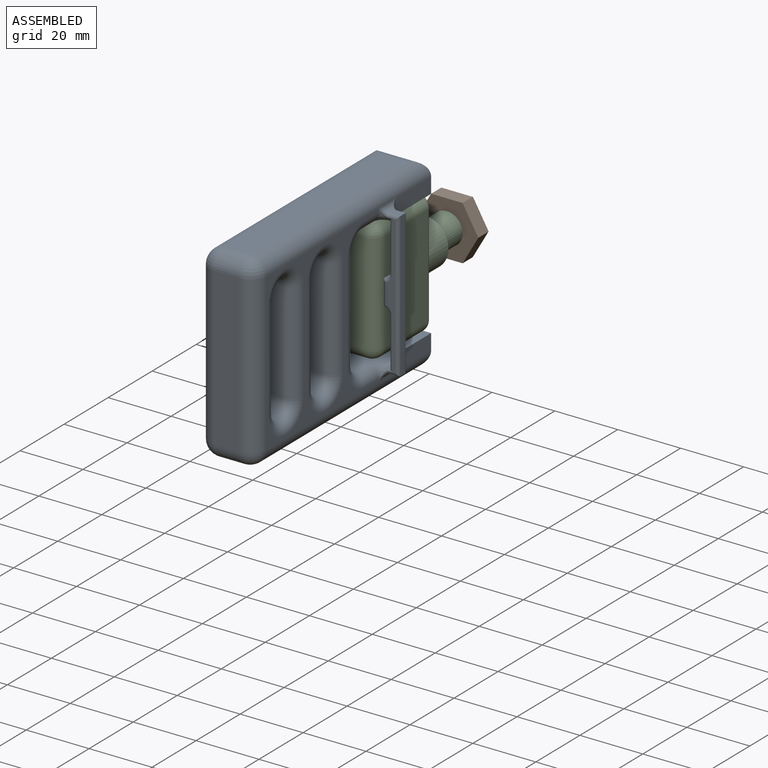
[diagram: assembled view]
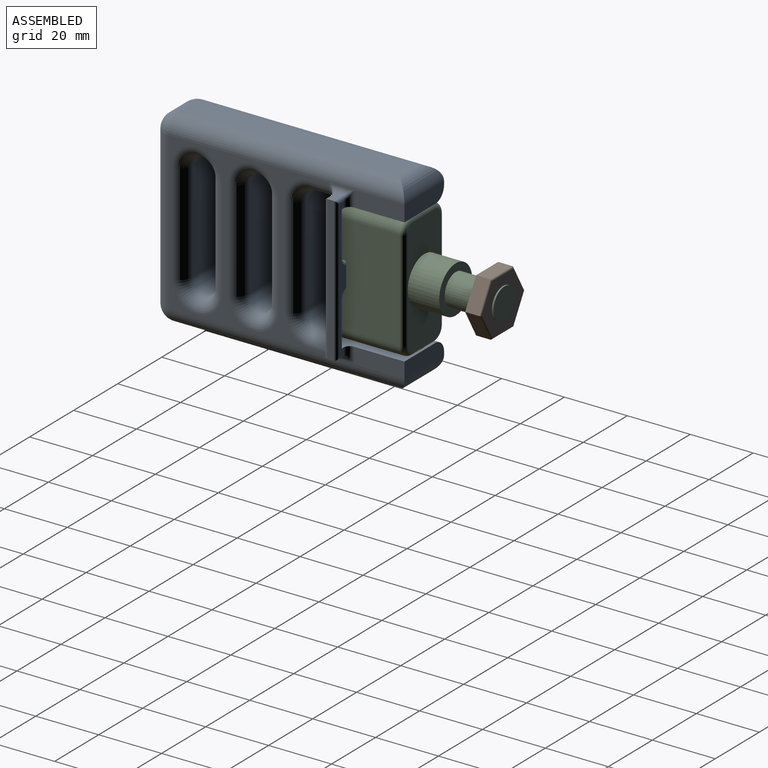
[diagram: assembled view, second angle]
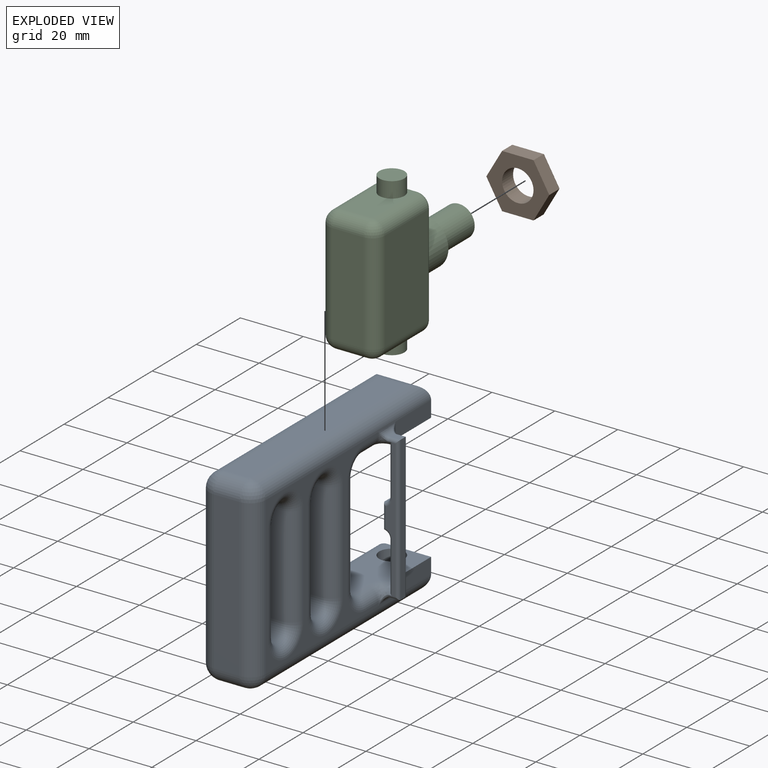
[diagram: exploded view]
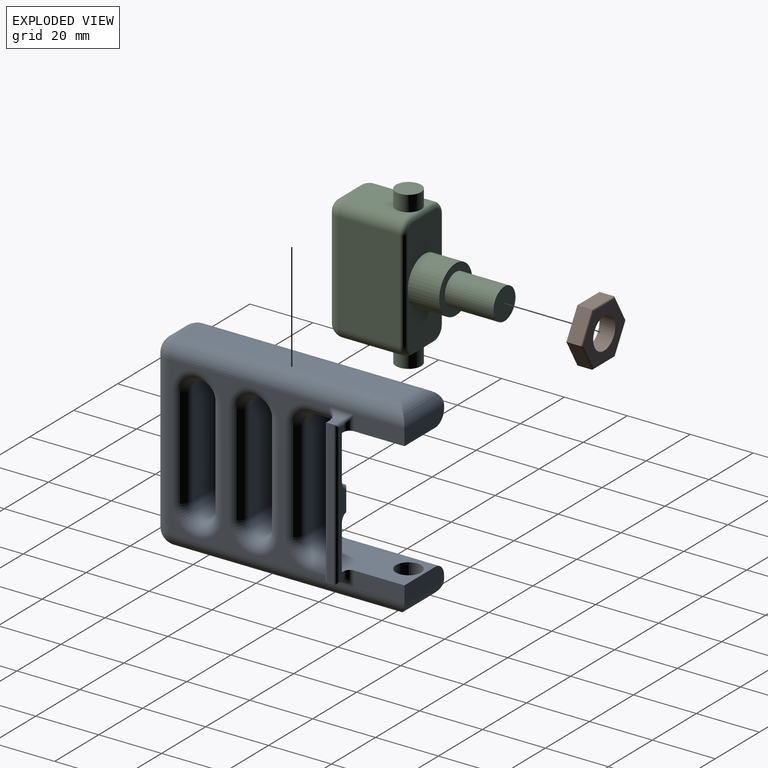
[diagram: exploded view, second angle]
ASSEMBLY  parts=3 mates=4
PART A: 110 faces, bbox 23x80x60 mm
  f0: cylinder r=4mm len=0.46mm, axis (-1,0,0), area 0mm2, adj f11,f41,f73
  f1: cylinder r=4mm len=1.15mm, axis (-1,0,0), area 0.4mm2, adj f43,f49,f88
  f2: plane 16x5mm, normal (1,0,0), area 80mm2, adj f18,f19,f34,f66
  f3: plane 16x5mm, normal (1,0,0), area 80mm2, adj f7,f11,f30,f58
  f4: plane 14.87x2.02mm, normal (-1,0,0), area 28.7mm2, adj f37,f41,f45,f73
  f5: plane 51x50mm, normal (1,0,0), area 479.3mm2, adj f32,f33,f58,f63,f66,f77,f81,f83
  f6: cylinder r=4mm len=8mm, axis (0,0,-1), area 125.7mm2, adj f11,f12
  f7: plane 18x5mm, normal (0,1,0), area 86.6mm2, adj f3,f8,f11,f59,f74
  f8: plane 75x50mm, normal (-1,0,0), area 527.3mm2, adj f7,f19,f61,f67,f71,f74,f76,f79
  f9: plane 50x8mm, normal (0,-1,0), area 400mm2, adj f62,f63,f67,f68
  f10: plane 70x8mm, normal (0,0,1), area 560mm2, adj f58,f59,f61,f62
  f11: plane 30x17mm, normal (0,0,-1), area 332.2mm2, adj f0,f3,f6,f7,f25,f30,f41,f73
  f12: plane 8x8mm, normal (0,0,-1), area 50.3mm2, adj f6
  f13: plane 32x10mm, normal (0,1,0), area 320mm2, adj f91,f93,f97,f98
  f14: plane 32x10mm, normal (0,1,0), area 320mm2, adj f78,f79,f83,f84
  f15: plane 32x10mm, normal (0,-1,0), area 320mm2, adj f101,f102,f106,f107
  f16: plane 32x10mm, normal (0,1,0), area 320mm2, adj f101,f103,f107,f108
  f17: plane 32x10mm, normal (0,-1,0), area 320mm2, adj f91,f92,f96,f97
  f18: plane 30x17mm, normal (0,0,1), area 332.2mm2, adj f2,f19,f20,f25,f34,f38,f80,f84
  f19: plane 18x5mm, normal (0,1,0), area 86.6mm2, adj f2,f8,f18,f69,f80
  f20: cylinder r=4mm len=8mm, axis (0,0,1), area 125.7mm2, adj f18,f22
  f21: plane 70x8mm, normal (0,0,-1), area 560mm2, adj f66,f68,f69,f71
  f22: plane 8x8mm, normal (0,0,1), area 50.3mm2, adj f20
  f23: plane 44x3mm, normal (0,-1,0), area 59.7mm2, adj f43,f44,f45,f46,f47,f49,f50,f52
  f24: plane 3x2mm, normal (0,0,-1), area 6mm2, adj f26,f35,f49,f54
  f25: plane 44x3mm, normal (0,1,0), area 63.7mm2, adj f11,f18,f30,f34,f38,f39,f40,f41
  f26: plane 46x2mm, normal (1,0,0), area 92mm2, adj f24,f28,f50,f55
  f27: plane 14.87x2.02mm, normal (-1,0,0), area 28.7mm2, adj f36,f38,f43,f88
  f28: plane 3x2mm, normal (0,0,1), area 6mm2, adj f26,f31,f52,f57
  f29: plane 8x2mm, normal (-1,0,0), area 16mm2, adj f36,f37,f40,f46
  f30: cylinder r=2mm len=5mm, axis (0,0,1), area 9.7mm2, adj f3,f11,f25,f56
  f31: cylinder r=2mm len=8mm, axis (0,-1,0), area 13.1mm2, adj f28,f51,f56,f58
  f32: cylinder r=2mm len=1mm, axis (0,0,-1), area 0.3mm2, adj f5,f51,f75
  f33: cylinder r=2mm len=1mm, axis (0,0,-1), area 0.3mm2, adj f5,f48,f87
  f34: cylinder r=2mm len=5mm, axis (0,0,1), area 9.7mm2, adj f2,f18,f25,f53
  f35: cylinder r=2mm len=8mm, axis (0,1,0), area 13.1mm2, adj f24,f48,f53,f66
  f36: cylinder r=2mm len=2mm, axis (0,-1,0), area 6.3mm2, adj f27,f29,f39,f44
  f37: cylinder r=2mm len=2mm, axis (0,1,0), area 6.3mm2, adj f4,f29,f42,f47
  f38: cylinder r=1mm len=14.03mm, axis (0,0,-1), area 22mm2, adj f18,f25,f27,f39,f89
  f39: torus R=3mm, axis (0,1,0), area 5.2mm2, adj f25,f36,f38,f40
  f40: cylinder r=1mm len=8mm, axis (0,0,-1), area 11.6mm2, adj f25,f29,f39,f42
  f41: cylinder r=1mm len=14.03mm, axis (0,0,-1), area 22mm2, adj f0,f4,f11,f25,f42
  f42: torus R=3mm, axis (0,1,0), area 5.2mm2, adj f25,f37,f40,f41
  f43: cylinder r=1mm len=16mm, axis (0,0,1), area 24.4mm2, adj f1,f23,f27,f44
  f44: torus R=3mm, axis (0,1,0), area 5.2mm2, adj f23,f36,f43,f46
  f45: cylinder r=1mm len=16mm, axis (0,0,1), area 24.4mm2, adj f4,f23,f47,f72
  f46: cylinder r=1mm len=8mm, axis (0,0,1), area 11.6mm2, adj f23,f29,f44,f47
  f47: torus R=3mm, axis (0,1,0), area 5.2mm2, adj f23,f37,f45,f46
  f48: bspline ~3x3mm, area 3.6mm2, adj f33,f35,f49,f88
  f49: cylinder r=1mm len=3mm, axis (-1,0,0), area 4.1mm2, adj f1,f23,f24,f48,f50
  f50: cylinder r=1mm len=46mm, axis (0,0,1), area 71.1mm2, adj f23,f26,f49,f52
  f51: bspline ~3x3mm, area 3.6mm2, adj f31,f32,f52,f73
  f52: cylinder r=1mm len=3mm, axis (1,0,0), area 4.1mm2, adj f23,f28,f50,f51,f72
  f53: bspline ~3x3mm, area 3.6mm2, adj f34,f35,f54
  f54: cylinder r=1mm len=3mm, axis (1,0,0), area 4.1mm2, adj f24,f25,f53,f55
  f55: cylinder r=1mm len=46mm, axis (0,0,-1), area 71.1mm2, adj f25,f26,f54,f57
  f56: bspline ~3x3mm, area 3.6mm2, adj f30,f31,f57
  f57: cylinder r=1mm len=3mm, axis (-1,0,0), area 4.1mm2, adj f25,f28,f55,f56
  f58: cylinder r=5mm len=75mm, axis (0,-1,0), area 574.8mm2, adj f3,f5,f10,f31,f59,f60
  f59: cylinder r=5mm len=18mm, axis (1,0,0), area 112.8mm2, adj f7,f10,f58,f61
  f60: sphere r=5mm, area 39.3mm2, adj f58,f62,f63
  f61: cylinder r=5mm len=75mm, axis (0,1,0), area 574.8mm2, adj f8,f10,f59,f64
  f62: cylinder r=5mm len=8mm, axis (-1,0,0), area 62.8mm2, adj f9,f10,f60,f64
  f63: cylinder r=5mm len=50mm, axis (0,0,1), area 392.7mm2, adj f5,f9,f60,f65
  f64: sphere r=5mm, area 39.3mm2, adj f61,f62,f67
  f65: sphere r=5mm, area 39.3mm2, adj f63,f66,f68
  f66: cylinder r=5mm len=75mm, axis (0,-1,0), area 574.8mm2, adj f2,f5,f21,f35,f65,f69
  f67: cylinder r=5mm len=50mm, axis (0,0,-1), area 392.7mm2, adj f8,f9,f64,f70
  f68: cylinder r=5mm len=8mm, axis (-1,0,0), area 62.8mm2, adj f9,f21,f65,f70
  f69: cylinder r=5mm len=18mm, axis (-1,0,0), area 112.8mm2, adj f19,f21,f66,f71
  f70: sphere r=5mm, area 39.3mm2, adj f67,f68,f71
  f71: cylinder r=5mm len=75mm, axis (0,1,0), area 574.8mm2, adj f8,f21,f69,f70
  f72: cylinder r=4mm len=1.15mm, axis (-1,0,0), area 0.4mm2, adj f45,f52,f73
  f73: bspline ~6.39x4.97mm, area 22.1mm2, adj f0,f4,f11,f51,f72,f75
  f74: cylinder r=4mm len=30mm, axis (0,-1,0), area 188.5mm2, adj f7,f8,f11,f76
  f75: torus R=6mm, axis (0,0,1), area 7.4mm2, adj f11,f32,f73,f77
  f76: torus R=8mm, axis (1,0,0), area 53.8mm2, adj f8,f74,f78,f79
  f77: cylinder r=4mm len=6mm, axis (0,1,0), area 37.7mm2, adj f5,f11,f75,f81
  f78: cylinder r=4mm len=10mm, axis (-1,0,0), area 62.8mm2, adj f11,f14,f76,f81
  f79: cylinder r=4mm len=32mm, axis (0,0,-1), area 201.1mm2, adj f8,f14,f76,f82
  f80: cylinder r=4mm len=30mm, axis (0,-1,0), area 188.5mm2, adj f8,f18,f19,f82
  f81: torus R=8mm, axis (1,0,0), area 53.8mm2, adj f5,f77,f78,f83
  f82: torus R=8mm, axis (1,0,0), area 53.8mm2, adj f8,f79,f80,f84
  f83: cylinder r=4mm len=32mm, axis (0,0,1), area 201.1mm2, adj f5,f14,f81,f85
  f84: cylinder r=4mm len=10mm, axis (1,0,0), area 62.8mm2, adj f14,f18,f82,f85
  f85: torus R=8mm, axis (1,0,0), area 53.8mm2, adj f5,f83,f84,f86
  f86: cylinder r=4mm len=6mm, axis (0,1,0), area 37.7mm2, adj f5,f18,f85,f87
  f87: torus R=6mm, axis (0,0,-1), area 7.4mm2, adj f18,f33,f86,f88
  f88: bspline ~6.39x4.97mm, area 22.1mm2, adj f1,f18,f27,f48,f87,f89
  f89: cylinder r=4mm len=0.46mm, axis (-1,0,0), area 0mm2, adj f18,f38,f88
  f90: torus R=8mm, axis (1,0,0), area 107.6mm2, adj f5,f91,f92,f93
  f91: cylinder r=4mm len=10mm, axis (1,0,0), area 125.7mm2, adj f13,f17,f90,f94
  f92: cylinder r=4mm len=32mm, axis (0,0,-1), area 201.1mm2, adj f5,f17,f90,f95
  f93: cylinder r=4mm len=32mm, axis (0,0,1), area 201.1mm2, adj f5,f13,f90,f95
  f94: torus R=8mm, axis (1,0,0), area 107.6mm2, adj f8,f91,f96,f98
  f95: torus R=8mm, axis (1,0,0), area 107.6mm2, adj f5,f92,f93,f97
  f96: cylinder r=4mm len=32mm, axis (0,0,1), area 201.1mm2, adj f8,f17,f94,f99
  f97: cylinder r=4mm len=10mm, axis (-1,0,0), area 125.7mm2, adj f13,f17,f95,f99
  f98: cylinder r=4mm len=32mm, axis (0,0,-1), area 201.1mm2, adj f8,f13,f94,f99
  f99: torus R=8mm, axis (1,0,0), area 107.6mm2, adj f8,f96,f97,f98
  f100: torus R=8mm, axis (1,0,0), area 107.6mm2, adj f5,f101,f102,f103
  f101: cylinder r=4mm len=10mm, axis (1,0,0), area 125.7mm2, adj f15,f16,f100,f104
  f102: cylinder r=4mm len=32mm, axis (0,0,-1), area 201.1mm2, adj f5,f15,f100,f105
  f103: cylinder r=4mm len=32mm, axis (0,0,1), area 201.1mm2, adj f5,f16,f100,f105
  f104: torus R=8mm, axis (1,0,0), area 107.6mm2, adj f8,f101,f106,f108
  f105: torus R=8mm, axis (1,0,0), area 107.6mm2, adj f5,f102,f103,f107
  f106: cylinder r=4mm len=32mm, axis (0,0,1), area 201.1mm2, adj f8,f15,f104,f109
  f107: cylinder r=4mm len=10mm, axis (-1,0,0), area 125.7mm2, adj f15,f16,f105,f109
  f108: cylinder r=4mm len=32mm, axis (0,0,-1), area 201.1mm2, adj f8,f16,f104,f109
  f109: torus R=8mm, axis (1,0,0), area 107.6mm2, adj f8,f106,f107,f108
PART B: 15 faces, bbox 17.3x5x20 mm
  f0: plane 8.66x5mm, normal (0.5,0,-0.87), area 45mm2, adj f1,f5,f8,f12
  f1: plane 8.66x5mm, normal (-0.5,0,-0.87), area 45mm2, adj f0,f2,f8,f10
  f2: plane 10x4.5mm, normal (-1,0,0), area 45mm2, adj f1,f3,f8,f9
  f3: plane 8.66x5mm, normal (-0.5,0,0.87), area 45mm2, adj f2,f4,f8,f11
  f4: plane 8.66x5mm, normal (0.5,0,0.87), area 45mm2, adj f3,f5,f8,f13
  f5: plane 10x4.5mm, normal (1,0,0), area 45mm2, adj f0,f4,f8,f14
  f6: cylinder r=5mm len=10mm, axis (0,-1,0), area 157.1mm2, adj f7,f8
  f7: plane 18.85x16.32mm, normal (0,1,0), area 152.1mm2, adj f6,f9,f10,f11,f12,f13,f14
  f8: plane 20x17.32mm, normal (0,-1,0), area 181.3mm2, adj f0,f1,f2,f3,f4,f5,f6
  f9: cylinder r=0.5mm len=10mm, axis (0,0,-1), area 7.7mm2, adj f2,f7,f10,f11
  f10: cylinder r=0.5mm len=8.91mm, axis (0.87,0,-0.5), area 7.7mm2, adj f1,f7,f9,f12
  f11: cylinder r=0.5mm len=8.91mm, axis (-0.87,0,-0.5), area 7.7mm2, adj f3,f7,f9,f13
  f12: cylinder r=0.5mm len=8.91mm, axis (0.87,0,0.5), area 7.7mm2, adj f0,f7,f10,f14
  f13: cylinder r=0.5mm len=8.91mm, axis (-0.87,0,0.5), area 7.7mm2, adj f4,f7,f11,f14
  f14: cylinder r=0.5mm len=10mm, axis (0,0,1), area 7.7mm2, adj f5,f7,f12,f13
PART C: 39 faces, bbox 18.7x50.5x50 mm
  f0: plane 18.59x15mm, normal (0,1,0), area 186.6mm2, adj f4,f17,f19,f20,f21,f22,f23,f25
  f1: plane 18.59x15mm, normal (0,1,0), area 186.6mm2, adj f4,f15,f16,f17,f18,f20,f27,f38
  f2: cylinder r=5mm len=15.5mm, axis (0,-1,0), area 486.9mm2, adj f3,f5
  f3: plane 10x10mm, normal (0,1,0), area 78.5mm2, adj f2
  f4: cylinder r=7.5mm len=15mm, axis (0,1,0), area 471.2mm2, adj f0,f1,f5
  f5: plane 15x15mm, normal (0,1,0), area 98.2mm2, adj f2,f4
  f6: plane 19.5x10mm, normal (0,0,1), area 146mm2, adj f13,f15,f18,f31,f35,f37
  f7: plane 32x19.5mm, normal (-1,0,0), area 624mm2, adj f20,f24,f30,f31
  f8: plane 19.5x10mm, normal (0,0,-1), area 146mm2, adj f12,f19,f22,f24,f28,f29
  f9: plane 32x19.5mm, normal (1,0,0), area 624mm2, adj f17,f28,f34,f37
  f10: plane 32x10mm, normal (0,-1,0), area 320mm2, adj f29,f30,f34,f35
  f11: plane 8x8mm, normal (0,0,-1), area 50.3mm2, adj f12
  f12: cylinder r=4mm len=8mm, axis (0,0,-1), area 125.7mm2, adj f8,f11,f21
  f13: cylinder r=4mm len=8mm, axis (0,0,-1), area 125.7mm2, adj f6,f14,f16
  f14: plane 8x8mm, normal (0,0,1), area 50.3mm2, adj f13
  f15: cylinder r=1.5mm len=3.06mm, axis (-1,0,0), area 7.2mm2, adj f1,f6,f16,f38
  f16: bspline ~3.87x1.5mm, area 7.8mm2, adj f1,f13,f15,f18
  f17: cylinder r=1.5mm len=32mm, axis (0,0,1), area 75.4mm2, adj f0,f1,f9,f25,f38
  f18: cylinder r=1.5mm len=3.06mm, axis (-1,0,0), area 7.2mm2, adj f1,f6,f16,f27
  f19: cylinder r=1.5mm len=3.06mm, axis (1,0,0), area 7.2mm2, adj f0,f8,f21,f25
  f20: cylinder r=1.5mm len=32mm, axis (0,0,-1), area 75.4mm2, adj f0,f1,f7,f23,f27
  f21: bspline ~3.87x1.5mm, area 7.8mm2, adj f0,f12,f19,f22
  f22: cylinder r=1.5mm len=3.06mm, axis (1,0,0), area 7.2mm2, adj f0,f8,f21,f23
  f23: torus R=2.5mm, axis (0,-1,0), area 12.8mm2, adj f0,f20,f22,f24
  f24: cylinder r=4mm len=19.5mm, axis (0,1,0), area 122.5mm2, adj f7,f8,f23,f26
  f25: torus R=2.5mm, axis (0,-1,0), area 12.8mm2, adj f0,f17,f19,f28
  f26: sphere r=4mm, area 25.1mm2, adj f24,f29,f30
  f27: torus R=2.5mm, axis (0,-1,0), area 12.8mm2, adj f1,f18,f20,f31
  f28: cylinder r=4mm len=19.5mm, axis (0,-1,0), area 122.5mm2, adj f8,f9,f25,f32
  f29: cylinder r=4mm len=10mm, axis (-1,0,0), area 62.8mm2, adj f8,f10,f26,f32
  f30: cylinder r=4mm len=32mm, axis (0,0,1), area 201.1mm2, adj f7,f10,f26,f33
  f31: cylinder r=4mm len=19.5mm, axis (0,-1,0), area 122.5mm2, adj f6,f7,f27,f33
  f32: sphere r=4mm, area 25.1mm2, adj f28,f29,f34
  f33: sphere r=4mm, area 25.1mm2, adj f30,f31,f35
  f34: cylinder r=4mm len=32mm, axis (0,0,-1), area 201.1mm2, adj f9,f10,f32,f36
  f35: cylinder r=4mm len=10mm, axis (1,0,0), area 62.8mm2, adj f6,f10,f33,f36
  f36: sphere r=4mm, area 25.1mm2, adj f34,f35,f37
  f37: cylinder r=4mm len=19.5mm, axis (0,1,0), area 122.5mm2, adj f6,f9,f36,f38
  f38: torus R=2.5mm, axis (0,-1,0), area 12.8mm2, adj f1,f15,f17,f37
PLACE A rot(axis=(0,0,1),0deg) t=(40.78,137.04,-27.41)mm
PLACE B rot(axis=(0,1,0),90deg) t=(-69.22,137.04,-137.41)mm
PLACE C t=(40.78,137.04,-27.41)mm fixed
MATE cylindrical C.f2 <-> B.f6  axis (0,-1,0) through (-69.22,44.79,-27.41)mm
MATE planar B.f6 <-> C.f2  axis (0,1,0) through (-69.22,52.04,-27.41)mm
MATE cylindrical A.f6 <-> C.f12  axis (0,0,1) through (-69.22,22.04,-47.41)mm
MATE planar C.f8 <-> A.f18  axis (0,0,-1) through (-64.22,15.79,-47.41)mm
